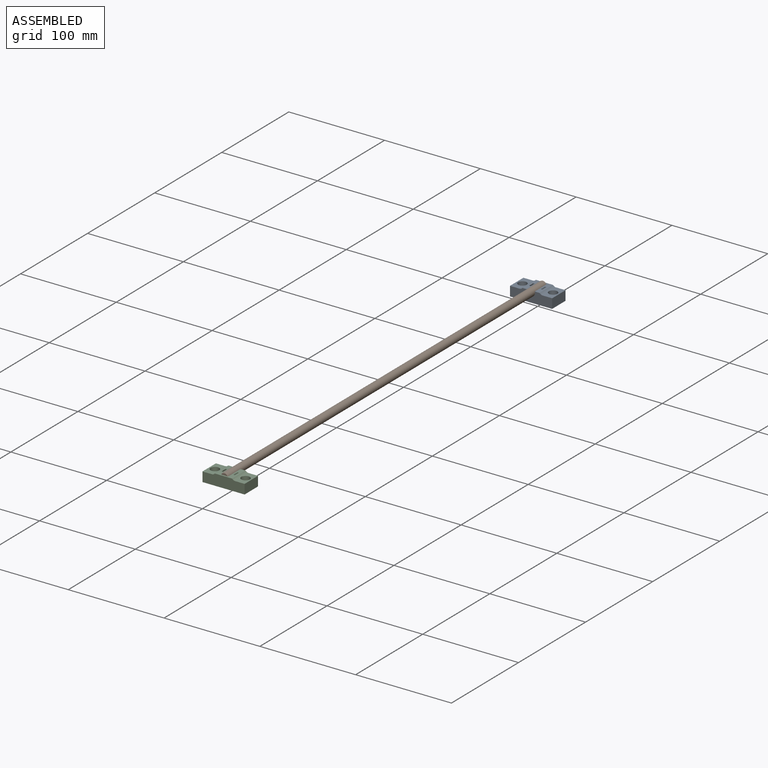
[diagram: assembled view]
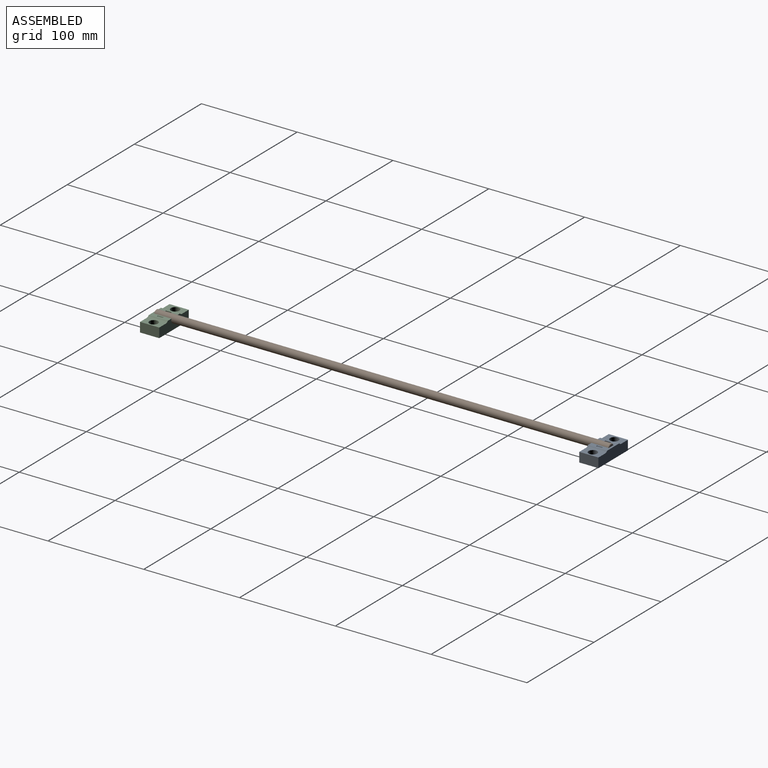
[diagram: assembled view, second angle]
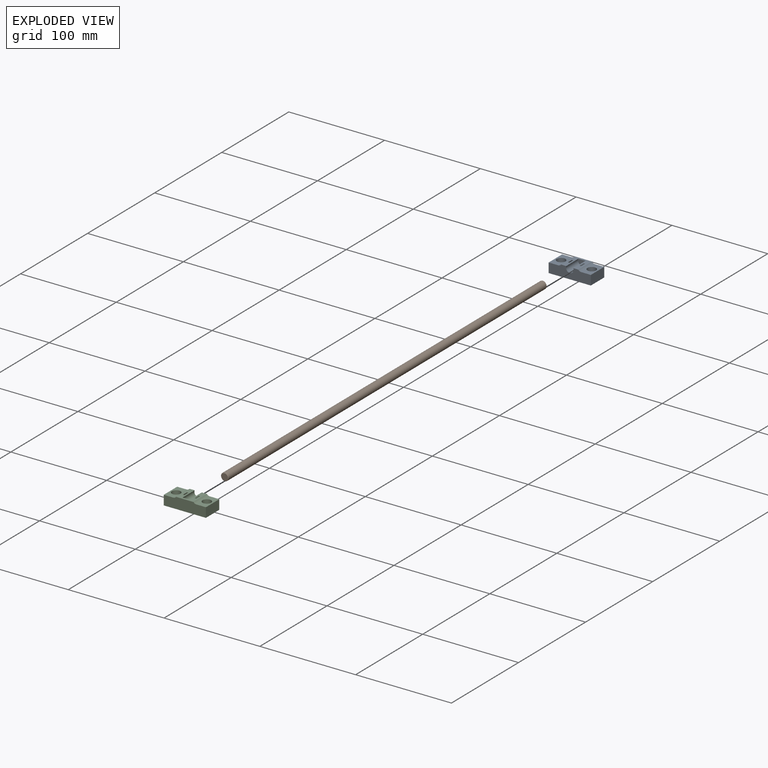
[diagram: exploded view]
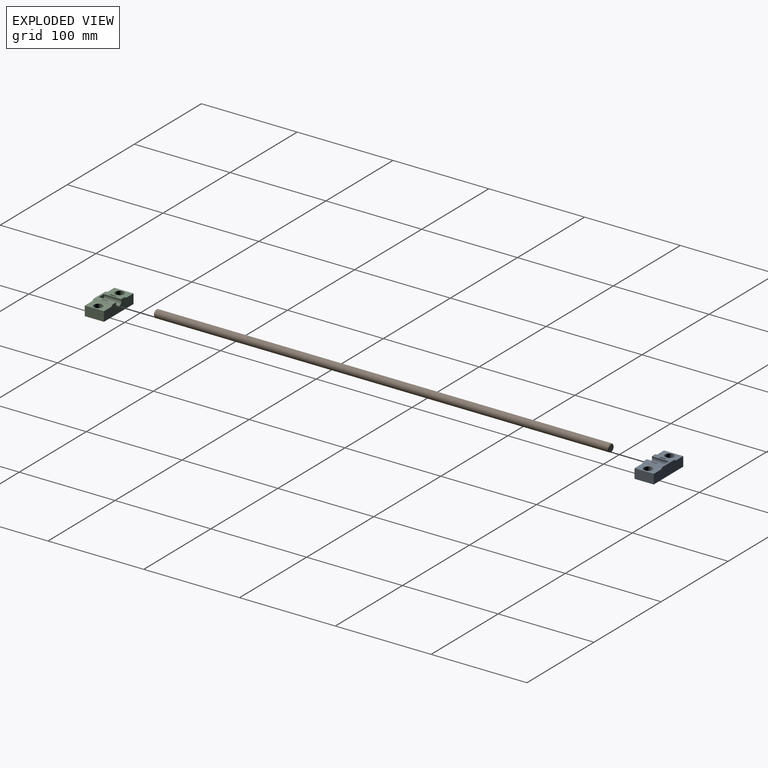
[diagram: exploded view, second angle]
ASSEMBLY  parts=3 mates=2
PART A: 22 faces, bbox 44x20x11.5 mm
  f0: cylinder r=4mm len=20mm, axis (0,1,0), area 69.7mm2, adj f3,f4,f10,f11,f20
  f1: cylinder r=2.75mm len=5.5mm, axis (0,0,1), area 86.4mm2, adj f6,f21
  f2: cylinder r=2.75mm len=5.5mm, axis (0,0,1), area 86.4mm2, adj f6,f19
  f3: plane 20x18mm, normal (0,0,1), area 208mm2, adj f0,f9,f10,f11,f12,f13,f14,f15
  f4: plane 20x9.88mm, normal (0,0,1), area 135.9mm2, adj f0,f5,f10,f11,f20
  f5: plane 20x10mm, normal (-1,0,0), area 200mm2, adj f4,f6,f10,f11
  f6: plane 44x20mm, normal (0,0,-1), area 832.5mm2, adj f1,f2,f5,f7,f10,f11
  f7: plane 20x10mm, normal (1,0,0), area 200mm2, adj f6,f8,f10,f11
  f8: plane 20x9.88mm, normal (0,0,1), area 135.9mm2, adj f7,f9,f10,f11,f18
  f9: cylinder r=4mm len=20mm, axis (0,1,0), area 69.7mm2, adj f3,f8,f10,f11,f18
  f10: plane 44x11.5mm, normal (0,-1,0), area 433mm2, adj f0,f3,f4,f5,f6,f7,f8,f9
  f11: plane 44x11.5mm, normal (0,1,0), area 469.8mm2, adj f0,f3,f4,f5,f6,f7,f8,f9
  f12: cylinder r=4mm len=18mm, axis (0,-1,0), area 281.5mm2, adj f3,f10,f13
  f13: plane 8x5.5mm, normal (0,-1,0), area 36.8mm2, adj f3,f12
  f14: cylinder r=5.5mm len=11mm, axis (0,-1,0), area 121.9mm2, adj f3,f16,f17
  f15: cylinder r=7mm len=14mm, axis (0,-1,0), area 150.1mm2, adj f3,f16,f17
  f16: plane 14x8.5mm, normal (0,-1,0), area 34mm2, adj f3,f14,f15
  f17: plane 14x8.5mm, normal (0,1,0), area 34mm2, adj f3,f14,f15
  f18: cylinder r=4.5mm len=9mm, axis (0,0,-1), area 141.5mm2, adj f8,f9,f19
  f19: plane 9x9mm, normal (0,0,1), area 39.9mm2, adj f2,f18
  f20: cylinder r=4.5mm len=9mm, axis (0,0,-1), area 141.5mm2, adj f0,f4,f21
  f21: plane 9x9mm, normal (0,0,1), area 39.9mm2, adj f1,f20
PART B: 5 faces, bbox 8x8x475 mm
  f0: cylinder r=4mm len=474mm, axis (0,0,-1), area 11912.9mm2, adj f3,f4
  f1: plane 7x7mm, normal (0,0,1), area 38.5mm2, adj f4
  f2: plane 7x7mm, normal (0,0,-1), area 38.5mm2, adj f3
  f3: cone r=4mm half-angle=45deg, axis (0,0,1), area 16.7mm2, adj f0,f2
  f4: cone r=3.5mm half-angle=45deg, axis (0,0,-1), area 16.7mm2, adj f0,f1
PART C: same geometry as A
PLACE A at identity
PLACE B rot(axis=(1,0,0),90deg) t=(0,8,0)mm
PLACE C rot(axis=(0,0,1),180deg) t=(0,-458.5,0)mm
MATE fastened B.f0 <-> A.f12  axis (0,1,0) through (0,7.5,0)mm
MATE fastened C.f12 <-> B.f0  axis (0,1,0) through (0,-466.5,0)mm
